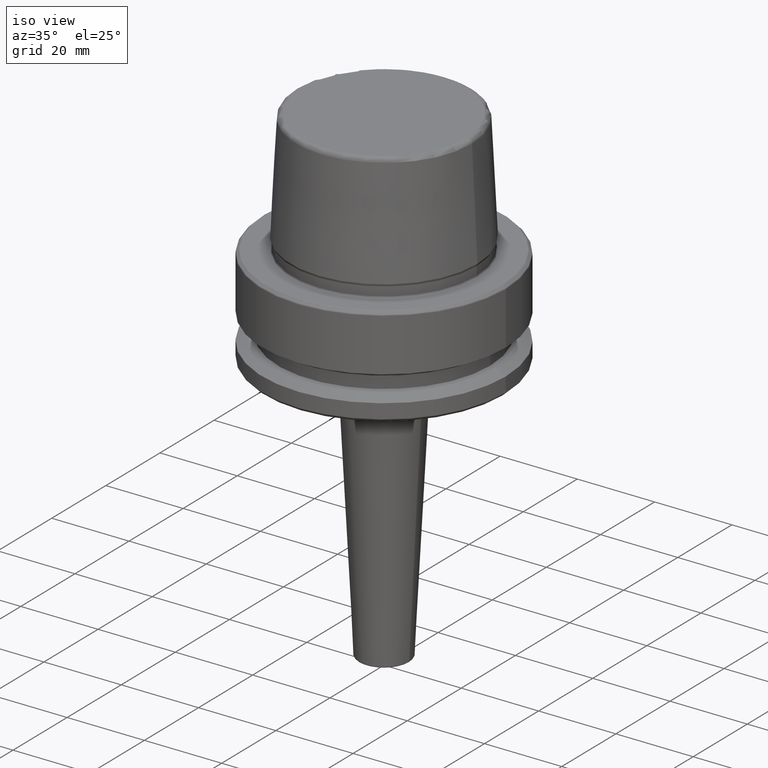
[diagram: clean part render]
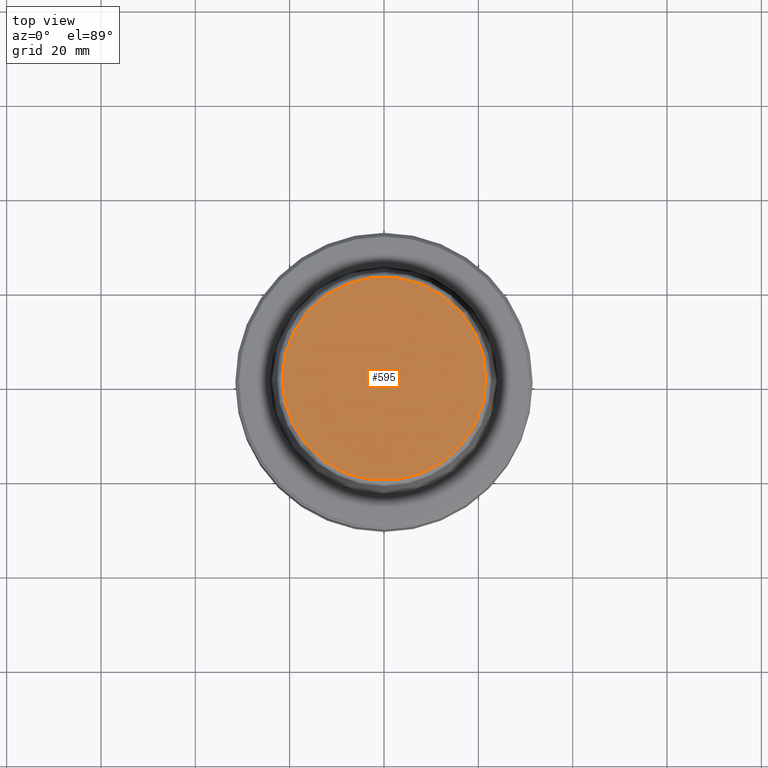
[diagram: tour spotlight — one face highlighted and labeled with its STEP entity id]
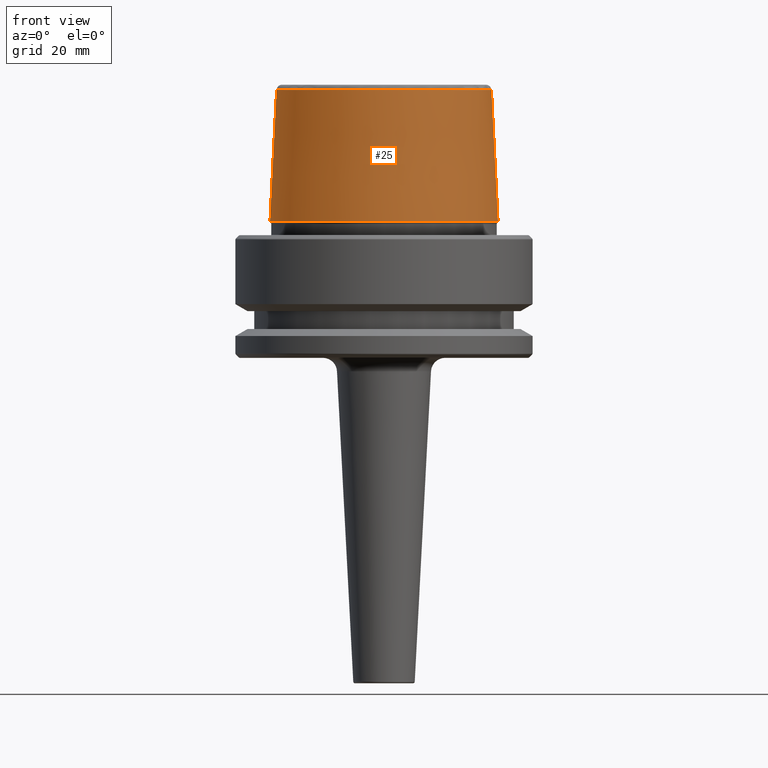
[diagram: tour spotlight — one face highlighted and labeled with its STEP entity id]
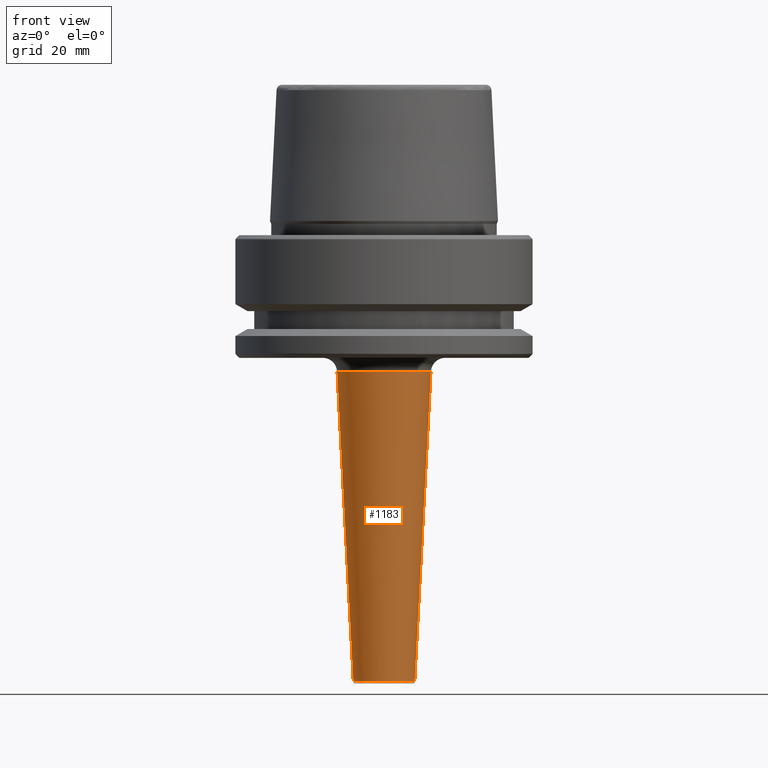
[diagram: tour spotlight — one face highlighted and labeled with its STEP entity id]
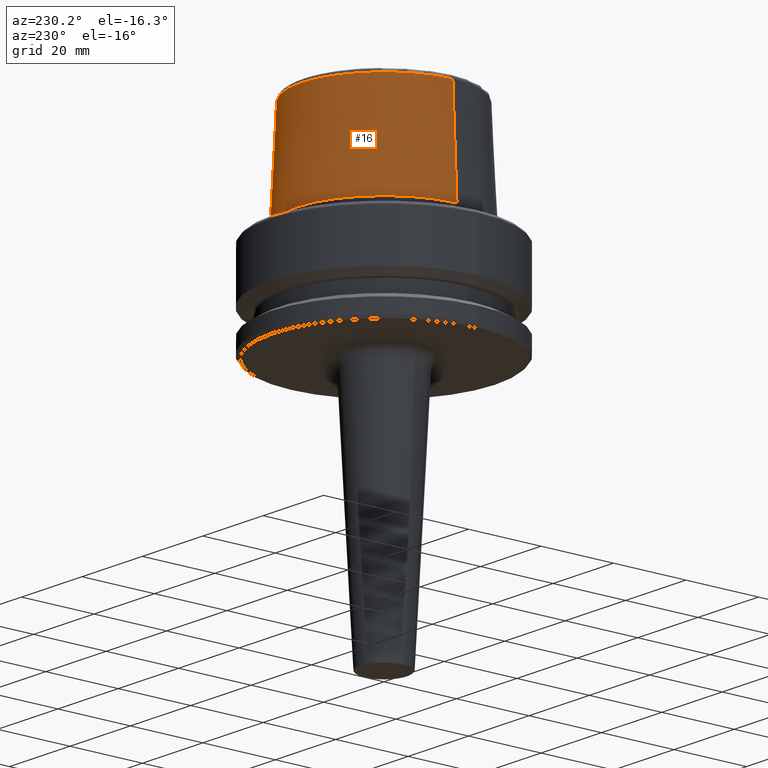
[diagram: tour spotlight — one face highlighted and labeled with its STEP entity id]
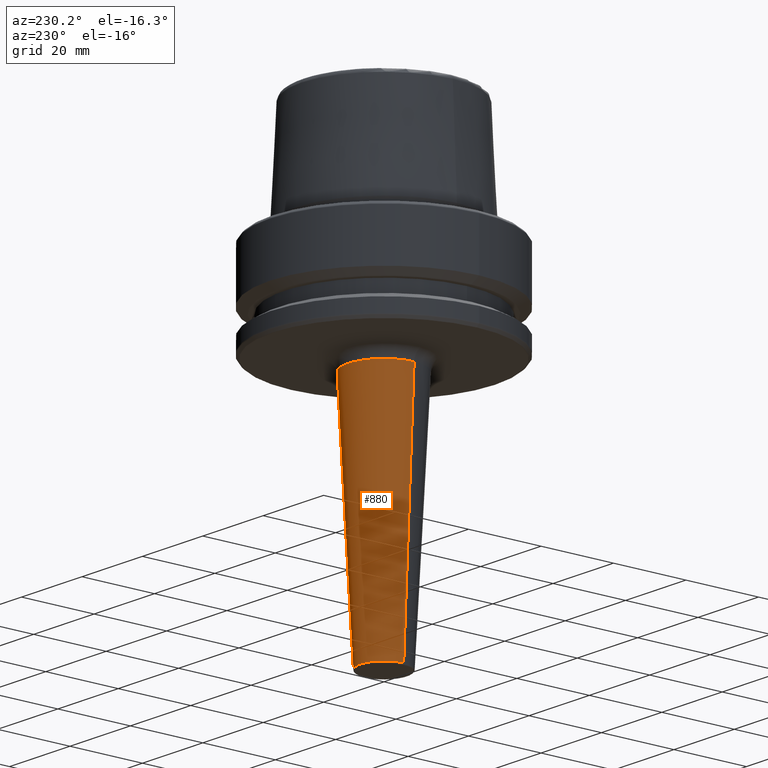
[diagram: tour spotlight — one face highlighted and labeled with its STEP entity id]
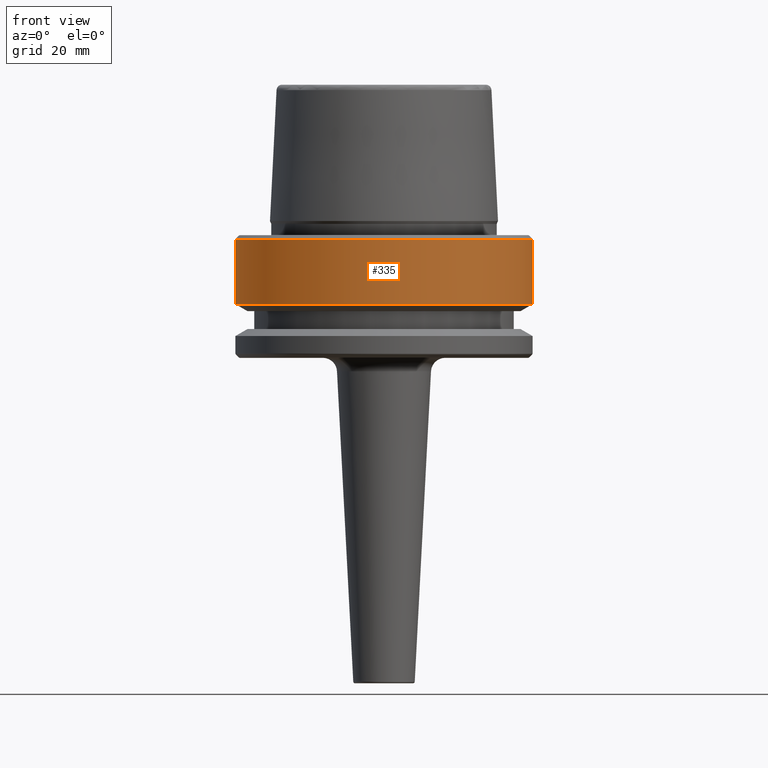
[diagram: tour spotlight — one face highlighted and labeled with its STEP entity id]
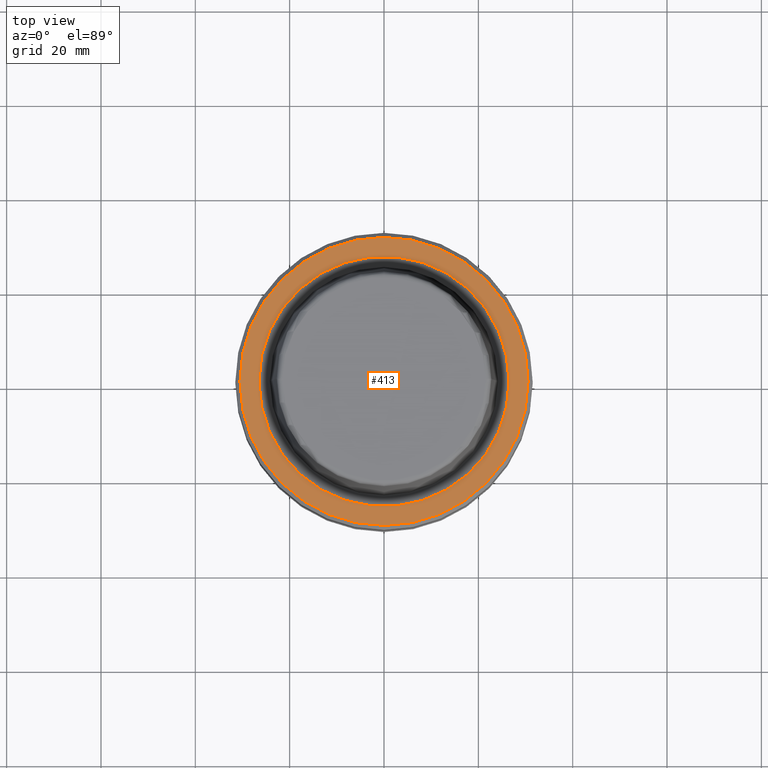
[diagram: tour spotlight — one face highlighted and labeled with its STEP entity id]
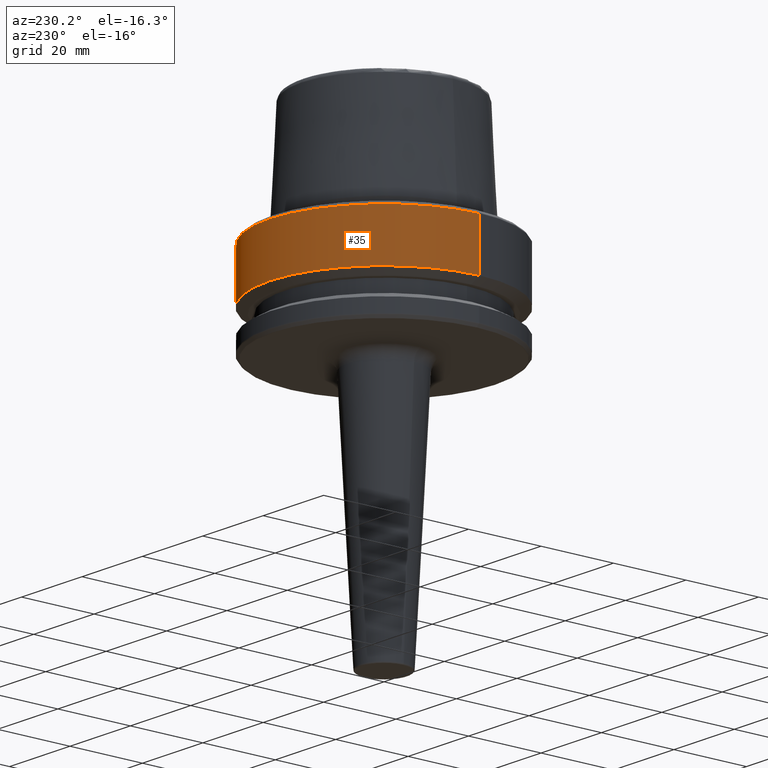
[diagram: tour spotlight — one face highlighted and labeled with its STEP entity id]
A machine part: a face-by-face anatomy tour. The part has 46 B-rep faces; the first image is the clean iso view, then the 8 largest visible faces are spotlighted one at a time (largest first), each with its STEP entity span.

Face 1 — top view, entity #595. In plain terms, the highlighted planar face has unit normal (0, 0, -1).
Definition (entity closure, byte-faithful):
#71 = PLANE ( 'NONE',  #573 ) ;
#98 = CARTESIAN_POINT ( 'NONE',  ( -21.58108272732117100, 2.716307157494421400E-015, 31.89999999999999900 ) ) ;
#258 = CARTESIAN_POINT ( 'NONE',  ( 0.0000000000000000000, 0.0000000000000000000, 31.89999999999999900 ) ) ;
#295 = CARTESIAN_POINT ( 'NONE',  ( 0.0000000000000000000, 0.0000000000000000000, 31.89999999999999900 ) ) ;
#362 = DIRECTION ( 'NONE',  ( -1.000000000000000000, 0.0000000000000000000, -0.0000000000000000000 ) ) ;
#393 = DIRECTION ( 'NONE',  ( 1.000000000000000000, 0.0000000000000000000, 0.0000000000000000000 ) ) ;
#431 = EDGE_CURVE ( 'NONE', #934, #550, #1108, .T. ) ;
#457 = AXIS2_PLACEMENT_3D ( 'NONE', #258, #619, #1226 ) ;
#550 = VERTEX_POINT ( 'NONE', #1221 ) ;
#573 = AXIS2_PLACEMENT_3D ( 'NONE', #631, #833, #362 ) ;
#595 = ADVANCED_FACE ( 'NONE', ( #1192 ), #71, .F. ) ;
#619 = DIRECTION ( 'NONE',  ( -0.0000000000000000000, -0.0000000000000000000, 1.000000000000000000 ) ) ;
#631 = CARTESIAN_POINT ( 'NONE',  ( 0.0000000000000000000, 0.0000000000000000000, 31.89999999999999900 ) ) ;
#679 = CIRCLE ( 'NONE', #1230, 21.58108272732117100 ) ;
#738 = EDGE_LOOP ( 'NONE', ( #1151, #1228 ) ) ;
#833 = DIRECTION ( 'NONE',  ( 0.0000000000000000000, 0.0000000000000000000, -1.000000000000000000 ) ) ;
#934 = VERTEX_POINT ( 'NONE', #98 ) ;
#966 = DIRECTION ( 'NONE',  ( -0.0000000000000000000, -0.0000000000000000000, 1.000000000000000000 ) ) ;
#1057 = EDGE_CURVE ( 'NONE', #550, #934, #679, .T. ) ;
#1108 = CIRCLE ( 'NONE', #457, 21.58108272732117100 ) ;
#1151 = ORIENTED_EDGE ( 'NONE', *, *, #1057, .T. ) ;
#1192 = FACE_OUTER_BOUND ( 'NONE', #738, .T. ) ;
#1221 = CARTESIAN_POINT ( 'NONE',  ( 21.58108272732117100, 0.0000000000000000000, 31.89999999999999900 ) ) ;
#1226 = DIRECTION ( 'NONE',  ( 1.000000000000000000, 0.0000000000000000000, 0.0000000000000000000 ) ) ;
#1228 = ORIENTED_EDGE ( 'NONE', *, *, #431, .T. ) ;
#1230 = AXIS2_PLACEMENT_3D ( 'NONE', #295, #966, #393 ) ;

Face 2 — front view, entity #25. In plain terms, the highlighted conical surface has half-angle 2.868 deg.
Definition (entity closure, byte-faithful):
#6 = LINE ( 'NONE', #564, #40 ) ;
#25 = ADVANCED_FACE ( 'NONE', ( #48 ), #75, .T. ) ;
#40 = VECTOR ( 'NONE', #425, 1000.000000000000200 ) ;
#48 = FACE_OUTER_BOUND ( 'NONE', #218, .T. ) ;
#59 = CARTESIAN_POINT ( 'NONE',  ( 22.77957961851797100, 2.874852597157249900E-015, 30.76004333261571900 ) ) ;
#75 = CONICAL_SURFACE ( 'NONE', #511, 24.17032625081241900, 0.05005701257456005000 ) ;
#176 = EDGE_CURVE ( 'NONE', #735, #872, #519, .T. ) ;
#207 = DIRECTION ( 'NONE',  ( -0.0000000000000000000, -0.0000000000000000000, 1.000000000000000000 ) ) ;
#218 = EDGE_LOOP ( 'NONE', ( #653, #614, #723, #410 ) ) ;
#227 = CIRCLE ( 'NONE', #379, 24.17032625081241900 ) ;
#271 = VERTEX_POINT ( 'NONE', #599 ) ;
#379 = AXIS2_PLACEMENT_3D ( 'NONE', #769, #207, #873 ) ;
#410 = ORIENTED_EDGE ( 'NONE', *, *, #1105, .T. ) ;
#425 = DIRECTION ( 'NONE',  ( -0.05003611051310812000, 0.0000000000000000000, -0.9987474093306675200 ) ) ;
#511 = AXIS2_PLACEMENT_3D ( 'NONE', #720, #797, #725 ) ;
#519 = CIRCLE ( 'NONE', #734, 22.77957961851797100 ) ;
#541 = LINE ( 'NONE', #841, #942 ) ;
#564 = CARTESIAN_POINT ( 'NONE',  ( -24.17032625081241900, 0.0000000000000000000, 3.000000000000002700 ) ) ;
#599 = CARTESIAN_POINT ( 'NONE',  ( 24.17032625081241900, 0.0000000000000000000, 3.000000000000002700 ) ) ;
#614 = ORIENTED_EDGE ( 'NONE', *, *, #176, .F. ) ;
#653 = ORIENTED_EDGE ( 'NONE', *, *, #741, .F. ) ;
#720 = CARTESIAN_POINT ( 'NONE',  ( 0.0000000000000000000, 0.0000000000000000000, 3.000000000000002700 ) ) ;
#723 = ORIENTED_EDGE ( 'NONE', *, *, #969, .T. ) ;
#725 = DIRECTION ( 'NONE',  ( -1.000000000000000000, 0.0000000000000000000, 0.0000000000000000000 ) ) ;
#734 = AXIS2_PLACEMENT_3D ( 'NONE', #1110, #1103, #997 ) ;
#735 = VERTEX_POINT ( 'NONE', #1218 ) ;
#741 = EDGE_CURVE ( 'NONE', #872, #271, #541, .T. ) ;
#769 = CARTESIAN_POINT ( 'NONE',  ( 0.0000000000000000000, 0.0000000000000000000, 3.000000000000002700 ) ) ;
#797 = DIRECTION ( 'NONE',  ( 0.0000000000000000000, 0.0000000000000000000, -1.000000000000000000 ) ) ;
#815 = VERTEX_POINT ( 'NONE', #930 ) ;
#841 = CARTESIAN_POINT ( 'NONE',  ( 24.17032625081241900, 2.960011267740467600E-015, 3.000000000000002700 ) ) ;
#872 = VERTEX_POINT ( 'NONE', #59 ) ;
#873 = DIRECTION ( 'NONE',  ( 1.000000000000000000, 0.0000000000000000000, 0.0000000000000000000 ) ) ;
#930 = CARTESIAN_POINT ( 'NONE',  ( -24.17032625081241900, 2.960011267740467600E-015, 3.000000000000002700 ) ) ;
#942 = VECTOR ( 'NONE', #947, 1000.000000000000200 ) ;
#947 = DIRECTION ( 'NONE',  ( 0.05003611051310812000, 6.127656258166108900E-018, -0.9987474093306675200 ) ) ;
#969 = EDGE_CURVE ( 'NONE', #735, #815, #6, .T. ) ;
#997 = DIRECTION ( 'NONE',  ( 1.000000000000000000, 0.0000000000000000000, 0.0000000000000000000 ) ) ;
#1103 = DIRECTION ( 'NONE',  ( -0.0000000000000000000, -0.0000000000000000000, 1.000000000000000000 ) ) ;
#1105 = EDGE_CURVE ( 'NONE', #815, #271, #227, .T. ) ;
#1110 = CARTESIAN_POINT ( 'NONE',  ( 0.0000000000000000000, 0.0000000000000000000, 30.76004333261571900 ) ) ;
#1218 = CARTESIAN_POINT ( 'NONE',  ( -22.77957961851797100, 0.0000000000000000000, 30.76004333261571900 ) ) ;

Face 3 — front view, entity #1183. In plain terms, the highlighted conical surface has half-angle 3 deg.
Definition (entity closure, byte-faithful):
#15 = EDGE_LOOP ( 'NONE', ( #1160, #279, #999, #1087 ) ) ;
#66 = AXIS2_PLACEMENT_3D ( 'NONE', #772, #210, #878 ) ;
#100 = DIRECTION ( 'NONE',  ( -0.0000000000000000000, -0.0000000000000000000, 1.000000000000000000 ) ) ;
#114 = CARTESIAN_POINT ( 'NONE',  ( 0.0000000000000000000, 0.0000000000000000000, -94.62093438249719700 ) ) ;
#180 = CIRCLE ( 'NONE', #406, 6.519865987215877300 ) ;
#210 = DIRECTION ( 'NONE',  ( 0.0000000000000000000, 0.0000000000000000000, -1.000000000000000000 ) ) ;
#216 = DIRECTION ( 'NONE',  ( 1.000000000000000000, 0.0000000000000000000, 0.0000000000000000000 ) ) ;
#251 = VERTEX_POINT ( 'NONE', #388 ) ;
#252 = VECTOR ( 'NONE', #755, 1000.000000000000100 ) ;
#279 = ORIENTED_EDGE ( 'NONE', *, *, #1035, .T. ) ;
#315 = DIRECTION ( 'NONE',  ( -0.0000000000000000000, -0.0000000000000000000, 1.000000000000000000 ) ) ;
#387 = VERTEX_POINT ( 'NONE', #903 ) ;
#388 = CARTESIAN_POINT ( 'NONE',  ( 6.519865987215876400, 0.0000000000000000000, -94.62093438249719700 ) ) ;
#406 = AXIS2_PLACEMENT_3D ( 'NONE', #668, #100, #762 ) ;
#447 = LINE ( 'NONE', #847, #839 ) ;
#526 = CARTESIAN_POINT ( 'NONE',  ( 9.967141866410768700, 0.0000000000000000000, -28.84299213127116700 ) ) ;
#551 = VERTEX_POINT ( 'NONE', #642 ) ;
#576 = EDGE_CURVE ( 'NONE', #387, #551, #447, .T. ) ;
#634 = CONICAL_SURFACE ( 'NONE', #1040, 6.519865987215877300, 0.05235987755983000800 ) ;
#642 = CARTESIAN_POINT ( 'NONE',  ( -9.967141866410768700, 1.220622838334752500E-015, -28.84299213127116700 ) ) ;
#662 = CARTESIAN_POINT ( 'NONE',  ( 6.519865987215877300, 0.0000000000000000000, -94.62093438249719700 ) ) ;
#668 = CARTESIAN_POINT ( 'NONE',  ( 0.0000000000000000000, 0.0000000000000000000, -94.62093438249719700 ) ) ;
#708 = EDGE_CURVE ( 'NONE', #251, #868, #985, .T. ) ;
#755 = DIRECTION ( 'NONE',  ( 0.05233595624294396000, 0.0000000000000000000, 0.9986295347545739400 ) ) ;
#762 = DIRECTION ( 'NONE',  ( 1.000000000000000000, 0.0000000000000000000, 0.0000000000000000000 ) ) ;
#772 = CARTESIAN_POINT ( 'NONE',  ( 0.0000000000000000000, 0.0000000000000000000, -28.84299213127116700 ) ) ;
#802 = CIRCLE ( 'NONE', #66, 9.967141866410768700 ) ;
#839 = VECTOR ( 'NONE', #1130, 1000.000000000000100 ) ;
#847 = CARTESIAN_POINT ( 'NONE',  ( -6.519865987215877300, 7.984533012113621700E-016, -94.62093438249719700 ) ) ;
#868 = VERTEX_POINT ( 'NONE', #526 ) ;
#878 = DIRECTION ( 'NONE',  ( 1.000000000000000000, 0.0000000000000000000, 0.0000000000000000000 ) ) ;
#903 = CARTESIAN_POINT ( 'NONE',  ( -6.519865987215876400, 7.984533012113620700E-016, -94.62093438249719700 ) ) ;
#985 = LINE ( 'NONE', #662, #252 ) ;
#999 = ORIENTED_EDGE ( 'NONE', *, *, #708, .T. ) ;
#1035 = EDGE_CURVE ( 'NONE', #387, #251, #180, .T. ) ;
#1040 = AXIS2_PLACEMENT_3D ( 'NONE', #114, #315, #216 ) ;
#1087 = ORIENTED_EDGE ( 'NONE', *, *, #1145, .T. ) ;
#1130 = DIRECTION ( 'NONE',  ( -0.05233595624294396000, 6.409306129323725600E-018, 0.9986295347545739400 ) ) ;
#1145 = EDGE_CURVE ( 'NONE', #868, #551, #802, .T. ) ;
#1160 = ORIENTED_EDGE ( 'NONE', *, *, #576, .F. ) ;
#1183 = ADVANCED_FACE ( 'NONE', ( #1201 ), #634, .T. ) ;
#1201 = FACE_OUTER_BOUND ( 'NONE', #15, .T. ) ;

Face 4 — auxiliary view, entity #16. In plain terms, the highlighted conical surface has half-angle 2.868 deg.
Definition (entity closure, byte-faithful):
#6 = LINE ( 'NONE', #564, #40 ) ;
#16 = ADVANCED_FACE ( 'NONE', ( #1193 ), #771, .T. ) ;
#40 = VECTOR ( 'NONE', #425, 1000.000000000000200 ) ;
#59 = CARTESIAN_POINT ( 'NONE',  ( 22.77957961851797100, 2.874852597157249900E-015, 30.76004333261571900 ) ) ;
#67 = DIRECTION ( 'NONE',  ( 1.000000000000000000, 0.0000000000000000000, 0.0000000000000000000 ) ) ;
#77 = ORIENTED_EDGE ( 'NONE', *, *, #1022, .T. ) ;
#102 = CIRCLE ( 'NONE', #532, 24.17032625081241900 ) ;
#164 = CARTESIAN_POINT ( 'NONE',  ( 0.0000000000000000000, 0.0000000000000000000, 30.76004333261571900 ) ) ;
#165 = CIRCLE ( 'NONE', #1150, 22.77957961851797100 ) ;
#196 = CARTESIAN_POINT ( 'NONE',  ( 0.0000000000000000000, 0.0000000000000000000, 3.000000000000002700 ) ) ;
#206 = DIRECTION ( 'NONE',  ( 0.0000000000000000000, 0.0000000000000000000, -1.000000000000000000 ) ) ;
#271 = VERTEX_POINT ( 'NONE', #599 ) ;
#291 = DIRECTION ( 'NONE',  ( 1.000000000000000000, 0.0000000000000000000, 0.0000000000000000000 ) ) ;
#425 = DIRECTION ( 'NONE',  ( -0.05003611051310812000, 0.0000000000000000000, -0.9987474093306675200 ) ) ;
#455 = DIRECTION ( 'NONE',  ( -0.0000000000000000000, -0.0000000000000000000, 1.000000000000000000 ) ) ;
#460 = ORIENTED_EDGE ( 'NONE', *, *, #533, .F. ) ;
#532 = AXIS2_PLACEMENT_3D ( 'NONE', #196, #863, #291 ) ;
#533 = EDGE_CURVE ( 'NONE', #872, #735, #165, .T. ) ;
#541 = LINE ( 'NONE', #841, #942 ) ;
#564 = CARTESIAN_POINT ( 'NONE',  ( -24.17032625081241900, 0.0000000000000000000, 3.000000000000002700 ) ) ;
#599 = CARTESIAN_POINT ( 'NONE',  ( 24.17032625081241900, 0.0000000000000000000, 3.000000000000002700 ) ) ;
#673 = EDGE_LOOP ( 'NONE', ( #460, #1205, #77, #855 ) ) ;
#735 = VERTEX_POINT ( 'NONE', #1218 ) ;
#741 = EDGE_CURVE ( 'NONE', #872, #271, #541, .T. ) ;
#771 = CONICAL_SURFACE ( 'NONE', #862, 24.17032625081241900, 0.05005701257456005000 ) ;
#815 = VERTEX_POINT ( 'NONE', #930 ) ;
#841 = CARTESIAN_POINT ( 'NONE',  ( 24.17032625081241900, 2.960011267740467600E-015, 3.000000000000002700 ) ) ;
#855 = ORIENTED_EDGE ( 'NONE', *, *, #969, .F. ) ;
#862 = AXIS2_PLACEMENT_3D ( 'NONE', #869, #206, #1211 ) ;
#863 = DIRECTION ( 'NONE',  ( -0.0000000000000000000, -0.0000000000000000000, 1.000000000000000000 ) ) ;
#869 = CARTESIAN_POINT ( 'NONE',  ( 0.0000000000000000000, 0.0000000000000000000, 3.000000000000002700 ) ) ;
#872 = VERTEX_POINT ( 'NONE', #59 ) ;
#930 = CARTESIAN_POINT ( 'NONE',  ( -24.17032625081241900, 2.960011267740467600E-015, 3.000000000000002700 ) ) ;
#942 = VECTOR ( 'NONE', #947, 1000.000000000000200 ) ;
#947 = DIRECTION ( 'NONE',  ( 0.05003611051310812000, 6.127656258166108900E-018, -0.9987474093306675200 ) ) ;
#969 = EDGE_CURVE ( 'NONE', #735, #815, #6, .T. ) ;
#1022 = EDGE_CURVE ( 'NONE', #271, #815, #102, .T. ) ;
#1150 = AXIS2_PLACEMENT_3D ( 'NONE', #164, #455, #67 ) ;
#1193 = FACE_OUTER_BOUND ( 'NONE', #673, .T. ) ;
#1205 = ORIENTED_EDGE ( 'NONE', *, *, #741, .T. ) ;
#1211 = DIRECTION ( 'NONE',  ( -1.000000000000000000, 0.0000000000000000000, 0.0000000000000000000 ) ) ;
#1218 = CARTESIAN_POINT ( 'NONE',  ( -22.77957961851797100, 0.0000000000000000000, 30.76004333261571900 ) ) ;

Face 5 — auxiliary view, entity #880. In plain terms, the highlighted conical surface has half-angle 3 deg.
Definition (entity closure, byte-faithful):
#30 = DIRECTION ( 'NONE',  ( -0.0000000000000000000, -0.0000000000000000000, 1.000000000000000000 ) ) ;
#197 = AXIS2_PLACEMENT_3D ( 'NONE', #1081, #493, #1174 ) ;
#231 = ORIENTED_EDGE ( 'NONE', *, *, #763, .T. ) ;
#251 = VERTEX_POINT ( 'NONE', #388 ) ;
#252 = VECTOR ( 'NONE', #755, 1000.000000000000100 ) ;
#273 = DIRECTION ( 'NONE',  ( -0.0000000000000000000, -0.0000000000000000000, 1.000000000000000000 ) ) ;
#300 = ORIENTED_EDGE ( 'NONE', *, *, #1168, .T. ) ;
#355 = AXIS2_PLACEMENT_3D ( 'NONE', #546, #273, #1131 ) ;
#387 = VERTEX_POINT ( 'NONE', #903 ) ;
#388 = CARTESIAN_POINT ( 'NONE',  ( 6.519865987215876400, 0.0000000000000000000, -94.62093438249719700 ) ) ;
#447 = LINE ( 'NONE', #847, #839 ) ;
#493 = DIRECTION ( 'NONE',  ( 0.0000000000000000000, 0.0000000000000000000, -1.000000000000000000 ) ) ;
#494 = EDGE_LOOP ( 'NONE', ( #231, #630, #300, #1246 ) ) ;
#497 = CIRCLE ( 'NONE', #355, 6.519865987215877300 ) ;
#518 = DIRECTION ( 'NONE',  ( 1.000000000000000000, 0.0000000000000000000, 0.0000000000000000000 ) ) ;
#526 = CARTESIAN_POINT ( 'NONE',  ( 9.967141866410768700, 0.0000000000000000000, -28.84299213127116700 ) ) ;
#546 = CARTESIAN_POINT ( 'NONE',  ( 0.0000000000000000000, 0.0000000000000000000, -94.62093438249719700 ) ) ;
#551 = VERTEX_POINT ( 'NONE', #642 ) ;
#576 = EDGE_CURVE ( 'NONE', #387, #551, #447, .T. ) ;
#622 = CARTESIAN_POINT ( 'NONE',  ( 0.0000000000000000000, 0.0000000000000000000, -94.62093438249719700 ) ) ;
#630 = ORIENTED_EDGE ( 'NONE', *, *, #576, .T. ) ;
#642 = CARTESIAN_POINT ( 'NONE',  ( -9.967141866410768700, 1.220622838334752500E-015, -28.84299213127116700 ) ) ;
#662 = CARTESIAN_POINT ( 'NONE',  ( 6.519865987215877300, 0.0000000000000000000, -94.62093438249719700 ) ) ;
#677 = CONICAL_SURFACE ( 'NONE', #1241, 6.519865987215877300, 0.05235987755983000800 ) ;
#708 = EDGE_CURVE ( 'NONE', #251, #868, #985, .T. ) ;
#755 = DIRECTION ( 'NONE',  ( 0.05233595624294396000, 0.0000000000000000000, 0.9986295347545739400 ) ) ;
#763 = EDGE_CURVE ( 'NONE', #251, #387, #497, .T. ) ;
#839 = VECTOR ( 'NONE', #1130, 1000.000000000000100 ) ;
#847 = CARTESIAN_POINT ( 'NONE',  ( -6.519865987215877300, 7.984533012113621700E-016, -94.62093438249719700 ) ) ;
#868 = VERTEX_POINT ( 'NONE', #526 ) ;
#880 = ADVANCED_FACE ( 'NONE', ( #1229 ), #677, .T. ) ;
#903 = CARTESIAN_POINT ( 'NONE',  ( -6.519865987215876400, 7.984533012113620700E-016, -94.62093438249719700 ) ) ;
#945 = CIRCLE ( 'NONE', #197, 9.967141866410768700 ) ;
#985 = LINE ( 'NONE', #662, #252 ) ;
#1081 = CARTESIAN_POINT ( 'NONE',  ( 0.0000000000000000000, 0.0000000000000000000, -28.84299213127116700 ) ) ;
#1130 = DIRECTION ( 'NONE',  ( -0.05233595624294396000, 6.409306129323725600E-018, 0.9986295347545739400 ) ) ;
#1131 = DIRECTION ( 'NONE',  ( 1.000000000000000000, 0.0000000000000000000, 0.0000000000000000000 ) ) ;
#1168 = EDGE_CURVE ( 'NONE', #551, #868, #945, .T. ) ;
#1174 = DIRECTION ( 'NONE',  ( 1.000000000000000000, 0.0000000000000000000, 0.0000000000000000000 ) ) ;
#1229 = FACE_OUTER_BOUND ( 'NONE', #494, .T. ) ;
#1241 = AXIS2_PLACEMENT_3D ( 'NONE', #622, #30, #518 ) ;
#1246 = ORIENTED_EDGE ( 'NONE', *, *, #708, .F. ) ;

Face 6 — front view, entity #335. In plain terms, the highlighted cylindrical surface (partial cylindrical patch) has radius 31.5 mm, axis along (-0, -0, 1).
Definition (entity closure, byte-faithful):
#22 = DIRECTION ( 'NONE',  ( 1.000000000000000000, 0.0000000000000000000, 0.0000000000000000000 ) ) ;
#57 = VERTEX_POINT ( 'NONE', #286 ) ;
#63 = VECTOR ( 'NONE', #474, 1000.000000000000000 ) ;
#85 = LINE ( 'NONE', #1244, #444 ) ;
#95 = DIRECTION ( 'NONE',  ( -0.0000000000000000000, -0.0000000000000000000, 1.000000000000000000 ) ) ;
#110 = ORIENTED_EDGE ( 'NONE', *, *, #1008, .T. ) ;
#182 = DIRECTION ( 'NONE',  ( -0.0000000000000000000, -0.0000000000000000000, 1.000000000000000000 ) ) ;
#192 = DIRECTION ( 'NONE',  ( 1.000000000000000000, 0.0000000000000000000, 0.0000000000000000000 ) ) ;
#217 = CYLINDRICAL_SURFACE ( 'NONE', #1034, 31.50000000000000000 ) ;
#233 = CARTESIAN_POINT ( 'NONE',  ( -31.50000000000000700, 3.857637417314163500E-015, -0.9656854249492363700 ) ) ;
#286 = CARTESIAN_POINT ( 'NONE',  ( -31.50000000000000000, 3.857637417314162700E-015, -14.62250092524070100 ) ) ;
#288 = AXIS2_PLACEMENT_3D ( 'NONE', #660, #95, #758 ) ;
#307 = EDGE_LOOP ( 'NONE', ( #897, #110, #1180, #981 ) ) ;
#316 = DIRECTION ( 'NONE',  ( -0.0000000000000000000, -0.0000000000000000000, 1.000000000000000000 ) ) ;
#323 = VERTEX_POINT ( 'NONE', #233 ) ;
#335 = ADVANCED_FACE ( 'NONE', ( #1136 ), #217, .T. ) ;
#444 = VECTOR ( 'NONE', #182, 1000.000000000000000 ) ;
#474 = DIRECTION ( 'NONE',  ( -0.0000000000000000000, -0.0000000000000000000, 1.000000000000000000 ) ) ;
#660 = CARTESIAN_POINT ( 'NONE',  ( 0.0000000000000000000, 0.0000000000000000000, -14.62250092524070100 ) ) ;
#758 = DIRECTION ( 'NONE',  ( 1.000000000000000000, 0.0000000000000000000, 0.0000000000000000000 ) ) ;
#798 = CARTESIAN_POINT ( 'NONE',  ( 0.0000000000000000000, 0.0000000000000000000, 78.96908074195309300 ) ) ;
#807 = EDGE_CURVE ( 'NONE', #323, #865, #1065, .T. ) ;
#816 = CARTESIAN_POINT ( 'NONE',  ( 0.0000000000000000000, 0.0000000000000000000, -0.9656854249492363700 ) ) ;
#822 = LINE ( 'NONE', #859, #63 ) ;
#859 = CARTESIAN_POINT ( 'NONE',  ( -31.50000000000000000, 3.857637417314162700E-015, 78.96908074195309300 ) ) ;
#865 = VERTEX_POINT ( 'NONE', #896 ) ;
#883 = VERTEX_POINT ( 'NONE', #1255 ) ;
#896 = CARTESIAN_POINT ( 'NONE',  ( 31.50000000000000700, 0.0000000000000000000, -0.9656854249492363700 ) ) ;
#897 = ORIENTED_EDGE ( 'NONE', *, *, #933, .F. ) ;
#905 = EDGE_CURVE ( 'NONE', #883, #865, #85, .T. ) ;
#918 = DIRECTION ( 'NONE',  ( -0.0000000000000000000, -0.0000000000000000000, 1.000000000000000000 ) ) ;
#933 = EDGE_CURVE ( 'NONE', #57, #323, #822, .T. ) ;
#981 = ORIENTED_EDGE ( 'NONE', *, *, #807, .F. ) ;
#1008 = EDGE_CURVE ( 'NONE', #57, #883, #1053, .T. ) ;
#1034 = AXIS2_PLACEMENT_3D ( 'NONE', #798, #316, #22 ) ;
#1053 = CIRCLE ( 'NONE', #288, 31.50000000000000000 ) ;
#1065 = CIRCLE ( 'NONE', #1096, 31.50000000000000700 ) ;
#1096 = AXIS2_PLACEMENT_3D ( 'NONE', #816, #918, #192 ) ;
#1136 = FACE_OUTER_BOUND ( 'NONE', #307, .T. ) ;
#1180 = ORIENTED_EDGE ( 'NONE', *, *, #905, .T. ) ;
#1244 = CARTESIAN_POINT ( 'NONE',  ( 31.50000000000000000, 0.0000000000000000000, 78.96908074195309300 ) ) ;
#1255 = CARTESIAN_POINT ( 'NONE',  ( 31.50000000000000000, 0.0000000000000000000, -14.62250092524070100 ) ) ;

Face 7 — top view, entity #413. In plain terms, the highlighted planar face has unit normal (0, 0, -1).
Definition (entity closure, byte-faithful):
#41 = DIRECTION ( 'NONE',  ( 1.000000000000000000, 0.0000000000000000000, 0.0000000000000000000 ) ) ;
#56 = DIRECTION ( 'NONE',  ( -1.000000000000000000, 0.0000000000000000000, -0.0000000000000000000 ) ) ;
#79 = ORIENTED_EDGE ( 'NONE', *, *, #239, .T. ) ;
#106 = EDGE_CURVE ( 'NONE', #940, #553, #1026, .T. ) ;
#117 = CARTESIAN_POINT ( 'NONE',  ( 0.0000000000000000000, 0.0000000000000000000, 0.0000000000000000000 ) ) ;
#130 = CARTESIAN_POINT ( 'NONE',  ( 0.0000000000000000000, 0.0000000000000000000, 0.0000000000000000000 ) ) ;
#152 = DIRECTION ( 'NONE',  ( 0.0000000000000000000, 0.0000000000000000000, -1.000000000000000000 ) ) ;
#195 = DIRECTION ( 'NONE',  ( -0.0000000000000000000, -0.0000000000000000000, 1.000000000000000000 ) ) ;
#200 = ORIENTED_EDGE ( 'NONE', *, *, #391, .F. ) ;
#239 = EDGE_CURVE ( 'NONE', #553, #940, #979, .T. ) ;
#240 = DIRECTION ( 'NONE',  ( -0.0000000000000000000, -0.0000000000000000000, 1.000000000000000000 ) ) ;
#317 = CARTESIAN_POINT ( 'NONE',  ( 26.52499999999999900, 0.0000000000000000000, 0.0000000000000000000 ) ) ;
#391 = EDGE_CURVE ( 'NONE', #1240, #657, #1071, .T. ) ;
#400 = CARTESIAN_POINT ( 'NONE',  ( -26.52499999999999900, 3.248375634738354300E-015, 0.0000000000000000000 ) ) ;
#413 = ADVANCED_FACE ( 'NONE', ( #1260, #900 ), #717, .F. ) ;
#464 = AXIS2_PLACEMENT_3D ( 'NONE', #817, #152, #56 ) ;
#553 = VERTEX_POINT ( 'NONE', #646 ) ;
#566 = CARTESIAN_POINT ( 'NONE',  ( 30.53431457505076100, 0.0000000000000000000, 0.0000000000000000000 ) ) ;
#646 = CARTESIAN_POINT ( 'NONE',  ( -30.53431457505076100, 3.756694181974138600E-015, 0.0000000000000000000 ) ) ;
#657 = VERTEX_POINT ( 'NONE', #400 ) ;
#676 = EDGE_LOOP ( 'NONE', ( #200, #742 ) ) ;
#717 = PLANE ( 'NONE',  #464 ) ;
#742 = ORIENTED_EDGE ( 'NONE', *, *, #925, .F. ) ;
#753 = DIRECTION ( 'NONE',  ( 1.000000000000000000, 0.0000000000000000000, 0.0000000000000000000 ) ) ;
#778 = EDGE_LOOP ( 'NONE', ( #1111, #79 ) ) ;
#786 = DIRECTION ( 'NONE',  ( 1.000000000000000000, 0.0000000000000000000, 0.0000000000000000000 ) ) ;
#817 = CARTESIAN_POINT ( 'NONE',  ( 0.0000000000000000000, 26.52499999999999900, -1.111307226797642000E-015 ) ) ;
#819 = AXIS2_PLACEMENT_3D ( 'NONE', #1054, #195, #753 ) ;
#836 = AXIS2_PLACEMENT_3D ( 'NONE', #130, #1251, #929 ) ;
#900 = FACE_OUTER_BOUND ( 'NONE', #778, .T. ) ;
#924 = DIRECTION ( 'NONE',  ( -0.0000000000000000000, -0.0000000000000000000, 1.000000000000000000 ) ) ;
#925 = EDGE_CURVE ( 'NONE', #657, #1240, #1156, .T. ) ;
#929 = DIRECTION ( 'NONE',  ( 1.000000000000000000, 0.0000000000000000000, 0.0000000000000000000 ) ) ;
#940 = VERTEX_POINT ( 'NONE', #566 ) ;
#957 = AXIS2_PLACEMENT_3D ( 'NONE', #1074, #924, #41 ) ;
#979 = CIRCLE ( 'NONE', #957, 30.53431457505076100 ) ;
#1026 = CIRCLE ( 'NONE', #836, 30.53431457505076100 ) ;
#1054 = CARTESIAN_POINT ( 'NONE',  ( 0.0000000000000000000, 0.0000000000000000000, 0.0000000000000000000 ) ) ;
#1071 = CIRCLE ( 'NONE', #1167, 26.52499999999999900 ) ;
#1074 = CARTESIAN_POINT ( 'NONE',  ( 0.0000000000000000000, 0.0000000000000000000, 0.0000000000000000000 ) ) ;
#1111 = ORIENTED_EDGE ( 'NONE', *, *, #106, .T. ) ;
#1156 = CIRCLE ( 'NONE', #819, 26.52499999999999900 ) ;
#1167 = AXIS2_PLACEMENT_3D ( 'NONE', #117, #240, #786 ) ;
#1240 = VERTEX_POINT ( 'NONE', #317 ) ;
#1251 = DIRECTION ( 'NONE',  ( -0.0000000000000000000, -0.0000000000000000000, 1.000000000000000000 ) ) ;
#1260 = FACE_BOUND ( 'NONE', #676, .T. ) ;

Face 8 — auxiliary view, entity #35. In plain terms, the highlighted cylindrical surface (partial cylindrical patch) has radius 31.5 mm, axis along (-0, -0, 1).
Definition (entity closure, byte-faithful):
#17 = ORIENTED_EDGE ( 'NONE', *, *, #933, .T. ) ;
#21 = ORIENTED_EDGE ( 'NONE', *, *, #904, .T. ) ;
#33 = CYLINDRICAL_SURFACE ( 'NONE', #1189, 31.50000000000000000 ) ;
#35 = ADVANCED_FACE ( 'NONE', ( #336 ), #33, .T. ) ;
#57 = VERTEX_POINT ( 'NONE', #286 ) ;
#63 = VECTOR ( 'NONE', #474, 1000.000000000000000 ) ;
#85 = LINE ( 'NONE', #1244, #444 ) ;
#101 = CIRCLE ( 'NONE', #686, 31.50000000000000000 ) ;
#103 = CIRCLE ( 'NONE', #138, 31.50000000000000700 ) ;
#138 = AXIS2_PLACEMENT_3D ( 'NONE', #928, #823, #834 ) ;
#182 = DIRECTION ( 'NONE',  ( -0.0000000000000000000, -0.0000000000000000000, 1.000000000000000000 ) ) ;
#189 = DIRECTION ( 'NONE',  ( -0.0000000000000000000, -0.0000000000000000000, 1.000000000000000000 ) ) ;
#233 = CARTESIAN_POINT ( 'NONE',  ( -31.50000000000000700, 3.857637417314163500E-015, -0.9656854249492363700 ) ) ;
#286 = CARTESIAN_POINT ( 'NONE',  ( -31.50000000000000000, 3.857637417314162700E-015, -14.62250092524070100 ) ) ;
#323 = VERTEX_POINT ( 'NONE', #233 ) ;
#336 = FACE_OUTER_BOUND ( 'NONE', #941, .T. ) ;
#444 = VECTOR ( 'NONE', #182, 1000.000000000000000 ) ;
#474 = DIRECTION ( 'NONE',  ( -0.0000000000000000000, -0.0000000000000000000, 1.000000000000000000 ) ) ;
#488 = EDGE_CURVE ( 'NONE', #865, #323, #103, .T. ) ;
#559 = CARTESIAN_POINT ( 'NONE',  ( 0.0000000000000000000, 0.0000000000000000000, -14.62250092524070100 ) ) ;
#682 = DIRECTION ( 'NONE',  ( -0.0000000000000000000, -0.0000000000000000000, 1.000000000000000000 ) ) ;
#686 = AXIS2_PLACEMENT_3D ( 'NONE', #559, #189, #950 ) ;
#822 = LINE ( 'NONE', #859, #63 ) ;
#823 = DIRECTION ( 'NONE',  ( -0.0000000000000000000, -0.0000000000000000000, 1.000000000000000000 ) ) ;
#834 = DIRECTION ( 'NONE',  ( 1.000000000000000000, 0.0000000000000000000, 0.0000000000000000000 ) ) ;
#859 = CARTESIAN_POINT ( 'NONE',  ( -31.50000000000000000, 3.857637417314162700E-015, 78.96908074195309300 ) ) ;
#865 = VERTEX_POINT ( 'NONE', #896 ) ;
#883 = VERTEX_POINT ( 'NONE', #1255 ) ;
#896 = CARTESIAN_POINT ( 'NONE',  ( 31.50000000000000700, 0.0000000000000000000, -0.9656854249492363700 ) ) ;
#904 = EDGE_CURVE ( 'NONE', #883, #57, #101, .T. ) ;
#905 = EDGE_CURVE ( 'NONE', #883, #865, #85, .T. ) ;
#928 = CARTESIAN_POINT ( 'NONE',  ( 0.0000000000000000000, 0.0000000000000000000, -0.9656854249492363700 ) ) ;
#933 = EDGE_CURVE ( 'NONE', #57, #323, #822, .T. ) ;
#941 = EDGE_LOOP ( 'NONE', ( #21, #17, #982, #1112 ) ) ;
#950 = DIRECTION ( 'NONE',  ( 1.000000000000000000, 0.0000000000000000000, 0.0000000000000000000 ) ) ;
#982 = ORIENTED_EDGE ( 'NONE', *, *, #488, .F. ) ;
#1010 = CARTESIAN_POINT ( 'NONE',  ( 0.0000000000000000000, 0.0000000000000000000, 78.96908074195309300 ) ) ;
#1112 = ORIENTED_EDGE ( 'NONE', *, *, #905, .F. ) ;
#1170 = DIRECTION ( 'NONE',  ( 1.000000000000000000, 0.0000000000000000000, 0.0000000000000000000 ) ) ;
#1189 = AXIS2_PLACEMENT_3D ( 'NONE', #1010, #682, #1170 ) ;
#1244 = CARTESIAN_POINT ( 'NONE',  ( 31.50000000000000000, 0.0000000000000000000, 78.96908074195309300 ) ) ;
#1255 = CARTESIAN_POINT ( 'NONE',  ( 31.50000000000000000, 0.0000000000000000000, -14.62250092524070100 ) ) ;